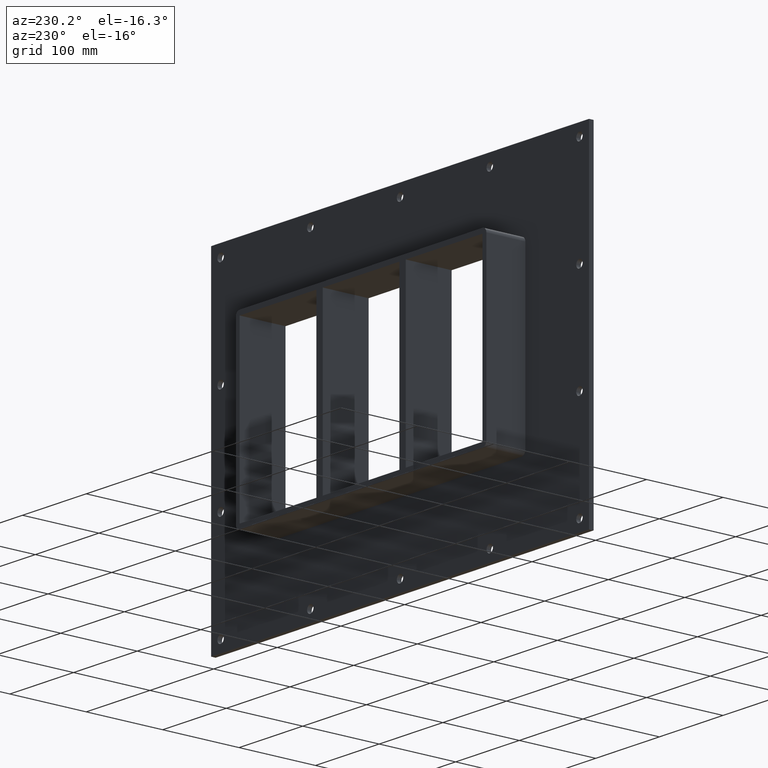
[diagram: clean part render]
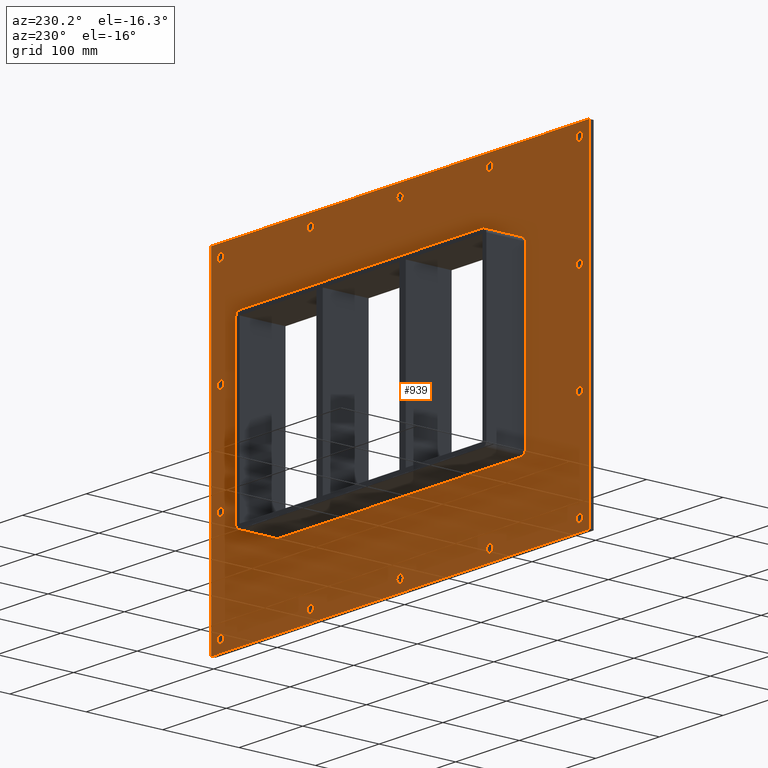
[diagram: same view with one face highlighted and labeled with its STEP entity id]
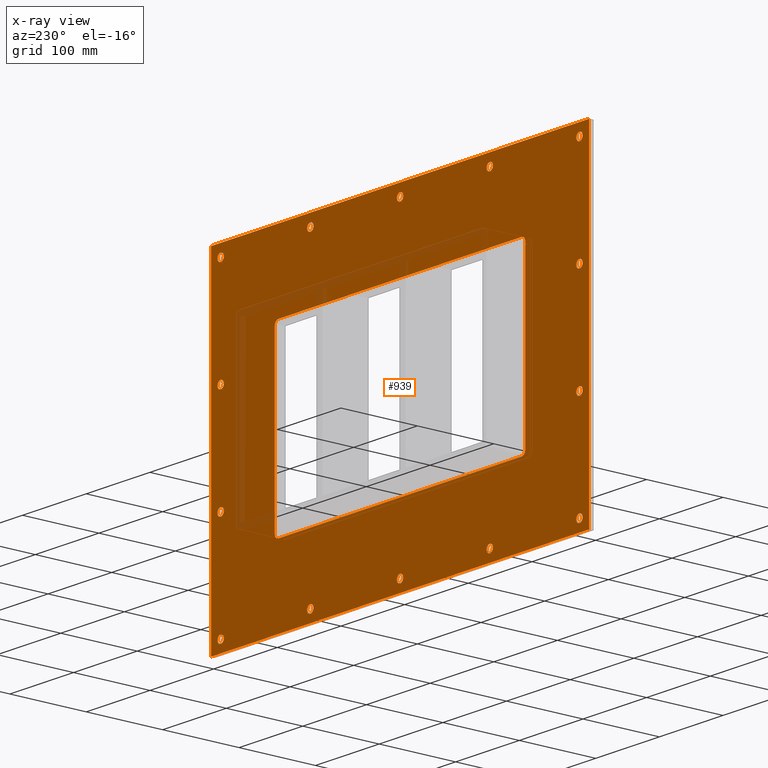
[diagram: x-ray of the same camera — body ghosted, the highlighted face saturated]
A machine part, auxiliary view. The second image highlights one B-rep face of the part: STEP entity #939.
The next image is the same camera in x-ray: the body ghosted, the highlighted face saturated — about 5% of this face is hidden behind the body in this view.
In plain terms, the highlighted planar face has unit normal (0, 1, 0).
Its self-contained STEP definition (entity closure, byte-faithful):
#73=CARTESIAN_POINT('',(-286.75000000000017,5.999999999999943,-200.00000000000006));
#74=VERTEX_POINT('',#73);
#75=CARTESIAN_POINT('',(-281.75000000000017,5.999999999999943,-200.00000000000006));
#76=DIRECTION('',(0.0,-1.0,0.0));
#77=DIRECTION('',(1.0,0.0,0.0));
#78=AXIS2_PLACEMENT_3D('',#75,#76,#77);
#79=CIRCLE('',#78,5.0);
#80=EDGE_CURVE('',#74,#74,#79,.T.);
#101=CARTESIAN_POINT('',(276.84999999999991,5.999999999999943,-66.700000000000017));
#102=VERTEX_POINT('',#101);
#103=CARTESIAN_POINT('',(281.84999999999991,5.999999999999943,-66.700000000000017));
#104=DIRECTION('',(0.0,-1.0,0.0));
#105=DIRECTION('',(1.0,0.0,0.0));
#106=AXIS2_PLACEMENT_3D('',#103,#104,#105);
#107=CIRCLE('',#106,5.0);
#108=EDGE_CURVE('',#102,#102,#107,.T.);
#129=CARTESIAN_POINT('',(-286.75000000000017,5.999999999999943,-66.700000000000017));
#130=VERTEX_POINT('',#129);
#131=CARTESIAN_POINT('',(-281.75000000000017,5.999999999999943,-66.700000000000017));
#132=DIRECTION('',(0.0,-1.0,0.0));
#133=DIRECTION('',(1.0,0.0,0.0));
#134=AXIS2_PLACEMENT_3D('',#131,#132,#133);
#135=CIRCLE('',#134,5.0);
#136=EDGE_CURVE('',#130,#130,#135,.T.);
#157=CARTESIAN_POINT('',(276.84999999999991,5.999999999999943,66.599999999999994));
#158=VERTEX_POINT('',#157);
#159=CARTESIAN_POINT('',(281.84999999999991,5.999999999999943,66.599999999999994));
#160=DIRECTION('',(0.0,-1.0,0.0));
#161=DIRECTION('',(1.0,0.0,0.0));
#162=AXIS2_PLACEMENT_3D('',#159,#160,#161);
#163=CIRCLE('',#162,5.0);
#164=EDGE_CURVE('',#158,#158,#163,.T.);
#185=CARTESIAN_POINT('',(-286.75000000000017,5.999999999999943,66.599999999999994));
#186=VERTEX_POINT('',#185);
#187=CARTESIAN_POINT('',(-281.75000000000017,5.999999999999943,66.599999999999994));
#188=DIRECTION('',(0.0,-1.0,0.0));
#189=DIRECTION('',(1.0,0.0,0.0));
#190=AXIS2_PLACEMENT_3D('',#187,#188,#189);
#191=CIRCLE('',#190,5.0);
#192=EDGE_CURVE('',#186,#186,#191,.T.);
#213=CARTESIAN_POINT('',(-145.85000000000014,5.999999999999943,199.90000000000003));
#214=VERTEX_POINT('',#213);
#215=CARTESIAN_POINT('',(-140.85000000000014,5.999999999999943,199.90000000000003));
#216=DIRECTION('',(0.0,-1.0,0.0));
#217=DIRECTION('',(1.0,0.0,0.0));
#218=AXIS2_PLACEMENT_3D('',#215,#216,#217);
#219=CIRCLE('',#218,5.0);
#220=EDGE_CURVE('',#214,#214,#219,.T.);
#241=CARTESIAN_POINT('',(-145.85000000000014,5.999999999999943,-200.00000000000006));
#242=VERTEX_POINT('',#241);
#243=CARTESIAN_POINT('',(-140.85000000000014,5.999999999999943,-200.00000000000006));
#244=DIRECTION('',(0.0,-1.0,0.0));
#245=DIRECTION('',(1.0,0.0,0.0));
#246=AXIS2_PLACEMENT_3D('',#243,#244,#245);
#247=CIRCLE('',#246,5.0);
#248=EDGE_CURVE('',#242,#242,#247,.T.);
#269=CARTESIAN_POINT('',(-4.950000000000152,5.999999999999943,199.90000000000003));
#270=VERTEX_POINT('',#269);
#271=CARTESIAN_POINT('',(0.049999999999848,5.999999999999943,199.90000000000003));
#272=DIRECTION('',(0.0,-1.0,0.0));
#273=DIRECTION('',(1.0,0.0,0.0));
#274=AXIS2_PLACEMENT_3D('',#271,#272,#273);
#275=CIRCLE('',#274,5.0);
#276=EDGE_CURVE('',#270,#270,#275,.T.);
#297=CARTESIAN_POINT('',(-4.950000000000152,5.999999999999943,-200.00000000000006));
#298=VERTEX_POINT('',#297);
#299=CARTESIAN_POINT('',(0.049999999999848,5.999999999999943,-200.00000000000006));
#300=DIRECTION('',(0.0,-1.0,0.0));
#301=DIRECTION('',(1.0,0.0,0.0));
#302=AXIS2_PLACEMENT_3D('',#299,#300,#301);
#303=CIRCLE('',#302,5.0);
#304=EDGE_CURVE('',#298,#298,#303,.T.);
#325=CARTESIAN_POINT('',(135.94999999999987,5.999999999999943,199.90000000000003));
#326=VERTEX_POINT('',#325);
#327=CARTESIAN_POINT('',(140.94999999999987,5.999999999999943,199.90000000000003));
#328=DIRECTION('',(0.0,-1.0,0.0));
#329=DIRECTION('',(1.0,0.0,0.0));
#330=AXIS2_PLACEMENT_3D('',#327,#328,#329);
#331=CIRCLE('',#330,5.0);
#332=EDGE_CURVE('',#326,#326,#331,.T.);
#353=CARTESIAN_POINT('',(135.94999999999987,5.999999999999943,-200.00000000000006));
#354=VERTEX_POINT('',#353);
#355=CARTESIAN_POINT('',(140.94999999999987,5.999999999999943,-200.00000000000006));
#356=DIRECTION('',(0.0,-1.0,0.0));
#357=DIRECTION('',(1.0,0.0,0.0));
#358=AXIS2_PLACEMENT_3D('',#355,#356,#357);
#359=CIRCLE('',#358,5.0);
#360=EDGE_CURVE('',#354,#354,#359,.T.);
#381=CARTESIAN_POINT('',(276.84999999999991,5.999999999999943,-200.00000000000006));
#382=VERTEX_POINT('',#381);
#383=CARTESIAN_POINT('',(281.84999999999991,5.999999999999943,-200.00000000000006));
#384=DIRECTION('',(0.0,-1.0,0.0));
#385=DIRECTION('',(1.0,0.0,0.0));
#386=AXIS2_PLACEMENT_3D('',#383,#384,#385);
#387=CIRCLE('',#386,5.0);
#388=EDGE_CURVE('',#382,#382,#387,.T.);
#409=CARTESIAN_POINT('',(-286.75000000000017,5.999999999999943,199.90000000000003));
#410=VERTEX_POINT('',#409);
#411=CARTESIAN_POINT('',(-281.75000000000017,5.999999999999943,199.90000000000003));
#412=DIRECTION('',(0.0,-1.0,0.0));
#413=DIRECTION('',(1.0,0.0,0.0));
#414=AXIS2_PLACEMENT_3D('',#411,#412,#413);
#415=CIRCLE('',#414,5.0);
#416=EDGE_CURVE('',#410,#410,#415,.T.);
#437=CARTESIAN_POINT('',(276.84999999999991,5.999999999999943,199.90000000000003));
#438=VERTEX_POINT('',#437);
#439=CARTESIAN_POINT('',(281.84999999999991,5.999999999999943,199.90000000000003));
#440=DIRECTION('',(0.0,-1.0,0.0));
#441=DIRECTION('',(1.0,0.0,0.0));
#442=AXIS2_PLACEMENT_3D('',#439,#440,#441);
#443=CIRCLE('',#442,5.0);
#444=EDGE_CURVE('',#438,#438,#443,.T.);
#788=CARTESIAN_POINT('',(0.0,6.000000000000001,-3.245518E-014));
#789=DIRECTION('',(0.0,1.0,0.0));
#790=DIRECTION('',(0.0,0.0,1.0));
#791=AXIS2_PLACEMENT_3D('',#788,#789,#790);
#792=PLANE('',#791);
#793=CARTESIAN_POINT('',(-296.75000000000011,6.000000000000001,215.0));
#794=VERTEX_POINT('',#793);
#795=CARTESIAN_POINT('',(296.75000000000011,6.000000000000001,215.0));
#796=VERTEX_POINT('',#795);
#797=CARTESIAN_POINT('',(-296.75000000000011,6.000000000000001,215.0));
#798=DIRECTION('',(1.0,0.0,0.0));
#799=VECTOR('',#798,593.50000000000023);
#800=LINE('',#797,#799);
#801=EDGE_CURVE('',#794,#796,#800,.T.);
#802=ORIENTED_EDGE('',*,*,#801,.T.);
#803=CARTESIAN_POINT('',(296.75000000000011,6.000000000000001,-215.00000000000006));
#804=VERTEX_POINT('',#803);
#805=CARTESIAN_POINT('',(296.75000000000011,6.000000000000001,215.0));
#806=DIRECTION('',(0.0,0.0,-1.0));
#807=VECTOR('',#806,430.00000000000006);
#808=LINE('',#805,#807);
#809=EDGE_CURVE('',#796,#804,#808,.T.);
#810=ORIENTED_EDGE('',*,*,#809,.T.);
#811=CARTESIAN_POINT('',(-296.75000000000011,6.000000000000001,-215.00000000000006));
#812=VERTEX_POINT('',#811);
#813=CARTESIAN_POINT('',(296.75000000000011,6.000000000000001,-215.00000000000006));
#814=DIRECTION('',(-1.0,0.0,0.0));
#815=VECTOR('',#814,593.50000000000023);
#816=LINE('',#813,#815);
#817=EDGE_CURVE('',#804,#812,#816,.T.);
#818=ORIENTED_EDGE('',*,*,#817,.T.);
#819=CARTESIAN_POINT('',(-296.75000000000011,6.000000000000001,-215.00000000000006));
#820=DIRECTION('',(0.0,0.0,1.0));
#821=VECTOR('',#820,430.00000000000006);
#822=LINE('',#819,#821);
#823=EDGE_CURVE('',#812,#794,#822,.T.);
#824=ORIENTED_EDGE('',*,*,#823,.T.);
#825=EDGE_LOOP('',(#802,#810,#818,#824));
#826=FACE_OUTER_BOUND('',#825,.T.);
#827=ORIENTED_EDGE('',*,*,#80,.T.);
#828=EDGE_LOOP('',(#827));
#829=FACE_BOUND('',#828,.T.);
#830=ORIENTED_EDGE('',*,*,#108,.T.);
#831=EDGE_LOOP('',(#830));
#832=FACE_BOUND('',#831,.T.);
#833=ORIENTED_EDGE('',*,*,#136,.T.);
#834=EDGE_LOOP('',(#833));
#835=FACE_BOUND('',#834,.T.);
#836=ORIENTED_EDGE('',*,*,#164,.T.);
#837=EDGE_LOOP('',(#836));
#838=FACE_BOUND('',#837,.T.);
#839=ORIENTED_EDGE('',*,*,#192,.T.);
#840=EDGE_LOOP('',(#839));
#841=FACE_BOUND('',#840,.T.);
#842=ORIENTED_EDGE('',*,*,#220,.T.);
#843=EDGE_LOOP('',(#842));
#844=FACE_BOUND('',#843,.T.);
#845=ORIENTED_EDGE('',*,*,#248,.T.);
#846=EDGE_LOOP('',(#845));
#847=FACE_BOUND('',#846,.T.);
#848=ORIENTED_EDGE('',*,*,#276,.T.);
#849=EDGE_LOOP('',(#848));
#850=FACE_BOUND('',#849,.T.);
#851=ORIENTED_EDGE('',*,*,#304,.T.);
#852=EDGE_LOOP('',(#851));
#853=FACE_BOUND('',#852,.T.);
#854=ORIENTED_EDGE('',*,*,#332,.T.);
#855=EDGE_LOOP('',(#854));
#856=FACE_BOUND('',#855,.T.);
#857=ORIENTED_EDGE('',*,*,#360,.T.);
#858=EDGE_LOOP('',(#857));
#859=FACE_BOUND('',#858,.T.);
#860=ORIENTED_EDGE('',*,*,#388,.T.);
#861=EDGE_LOOP('',(#860));
#862=FACE_BOUND('',#861,.T.);
#863=ORIENTED_EDGE('',*,*,#416,.T.);
#864=EDGE_LOOP('',(#863));
#865=FACE_BOUND('',#864,.T.);
#866=ORIENTED_EDGE('',*,*,#444,.T.);
#867=EDGE_LOOP('',(#866));
#868=FACE_BOUND('',#867,.T.);
#869=CARTESIAN_POINT('',(-190.75000000000003,6.000000000000001,-115.0));
#870=VERTEX_POINT('',#869);
#871=CARTESIAN_POINT('',(-196.75000000000006,6.000000000000001,-108.99999999999999));
#872=VERTEX_POINT('',#871);
#873=CARTESIAN_POINT('',(-190.75000000000003,6.000000000000001,-108.99999999999999));
#874=DIRECTION('',(0.0,1.0,0.0));
#875=DIRECTION('',(-0.707106781186548,0.0,-0.707106781186548));
#876=AXIS2_PLACEMENT_3D('',#873,#874,#875);
#877=CIRCLE('',#876,6.000000000000002);
#878=EDGE_CURVE('',#870,#872,#877,.T.);
#879=ORIENTED_EDGE('',*,*,#878,.F.);
#880=CARTESIAN_POINT('',(190.75000000000003,6.000000000000001,-115.0));
#881=VERTEX_POINT('',#880);
#882=CARTESIAN_POINT('',(190.75000000000003,6.000000000000001,-115.0));
#883=DIRECTION('',(-1.0,0.0,0.0));
#884=VECTOR('',#883,381.50000000000006);
#885=LINE('',#882,#884);
#886=EDGE_CURVE('',#881,#870,#885,.T.);
#887=ORIENTED_EDGE('',*,*,#886,.F.);
#888=CARTESIAN_POINT('',(196.75000000000006,6.000000000000001,-108.99999999999999));
#889=VERTEX_POINT('',#888);
#890=CARTESIAN_POINT('',(190.75000000000003,6.000000000000001,-108.99999999999999));
#891=DIRECTION('',(0.0,1.0,0.0));
#892=DIRECTION('',(0.707106781186548,0.0,-0.707106781186548));
#893=AXIS2_PLACEMENT_3D('',#890,#891,#892);
#894=CIRCLE('',#893,6.000000000000002);
#895=EDGE_CURVE('',#889,#881,#894,.T.);
#896=ORIENTED_EDGE('',*,*,#895,.F.);
#897=CARTESIAN_POINT('',(196.75000000000006,6.000000000000001,109.0));
#898=VERTEX_POINT('',#897);
#899=CARTESIAN_POINT('',(196.75000000000006,6.000000000000001,109.0));
#900=DIRECTION('',(0.0,0.0,-1.0));
#901=VECTOR('',#900,218.0);
#902=LINE('',#899,#901);
#903=EDGE_CURVE('',#898,#889,#902,.T.);
#904=ORIENTED_EDGE('',*,*,#903,.F.);
#905=CARTESIAN_POINT('',(190.75000000000003,6.000000000000001,115.0));
#906=VERTEX_POINT('',#905);
#907=CARTESIAN_POINT('',(190.75000000000003,6.000000000000001,109.0));
#908=DIRECTION('',(0.0,1.0,0.0));
#909=DIRECTION('',(0.70710678118655,0.0,0.707106781186545));
#910=AXIS2_PLACEMENT_3D('',#907,#908,#909);
#911=CIRCLE('',#910,6.000000000000001);
#912=EDGE_CURVE('',#906,#898,#911,.T.);
#913=ORIENTED_EDGE('',*,*,#912,.F.);
#914=CARTESIAN_POINT('',(-190.75000000000003,6.000000000000001,115.0));
#915=VERTEX_POINT('',#914);
#916=CARTESIAN_POINT('',(-190.75000000000003,6.000000000000001,115.0));
#917=DIRECTION('',(1.0,0.0,0.0));
#918=VECTOR('',#917,381.50000000000006);
#919=LINE('',#916,#918);
#920=EDGE_CURVE('',#915,#906,#919,.T.);
#921=ORIENTED_EDGE('',*,*,#920,.F.);
#922=CARTESIAN_POINT('',(-196.75000000000006,6.000000000000001,108.99999999999999));
#923=VERTEX_POINT('',#922);
#924=CARTESIAN_POINT('',(-190.75000000000003,6.000000000000001,108.99999999999999));
#925=DIRECTION('',(0.0,1.0,0.0));
#926=DIRECTION('',(-0.707106781186548,0.0,0.707106781186548));
#927=AXIS2_PLACEMENT_3D('',#924,#925,#926);
#928=CIRCLE('',#927,6.000000000000002);
#929=EDGE_CURVE('',#923,#915,#928,.T.);
#930=ORIENTED_EDGE('',*,*,#929,.F.);
#931=CARTESIAN_POINT('',(-196.75000000000006,6.000000000000001,-108.99999999999999));
#932=DIRECTION('',(0.0,0.0,1.0));
#933=VECTOR('',#932,217.99999999999997);
#934=LINE('',#931,#933);
#935=EDGE_CURVE('',#872,#923,#934,.T.);
#936=ORIENTED_EDGE('',*,*,#935,.F.);
#937=EDGE_LOOP('',(#879,#887,#896,#904,#913,#921,#930,#936));
#938=FACE_BOUND('',#937,.T.);
#939=ADVANCED_FACE('',(#826,#829,#832,#835,#838,#841,#844,#847,#850,#853,#856,#859,#862,#865,#868,#938),#792,.T.);